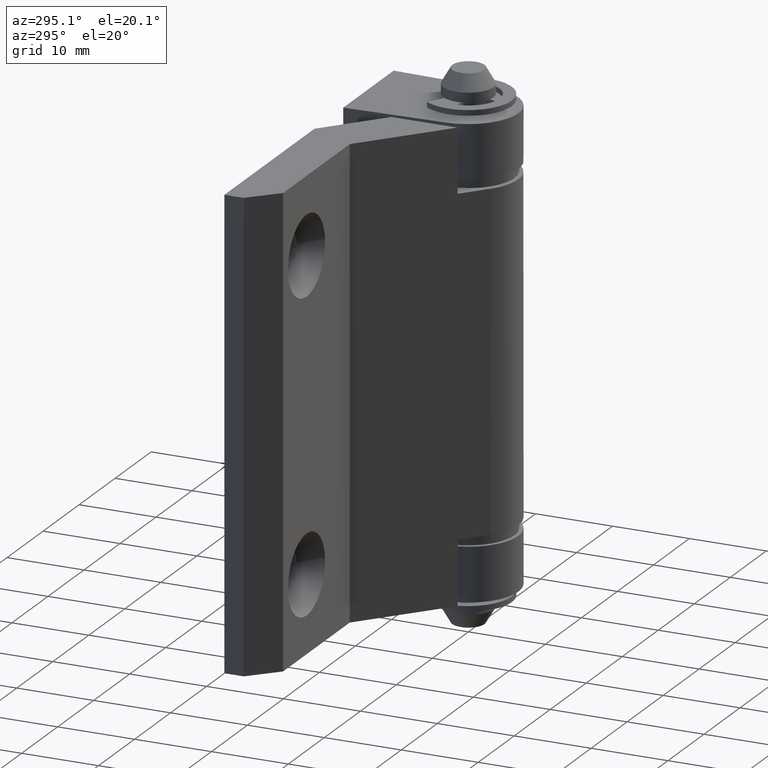
[diagram: clean part render]
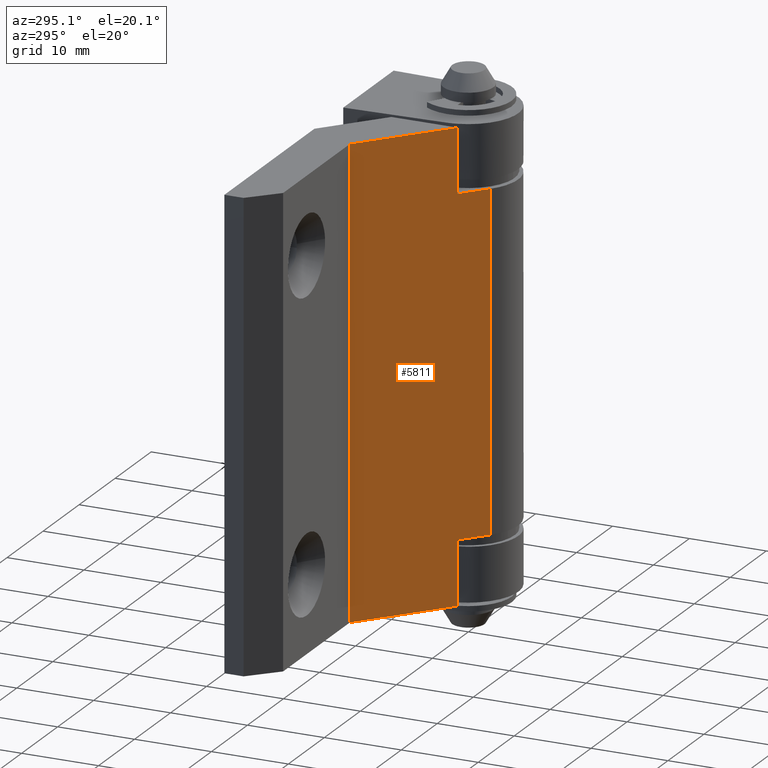
[diagram: same view with one face highlighted and labeled with its STEP entity id]
A machine part, auxiliary view. The second image highlights one B-rep face of the part: STEP entity #5811.
In plain terms, the highlighted face is a freeform B-spline surface patch.
Its self-contained STEP definition (entity closure, byte-faithful):
#5397=CARTESIAN_POINT('',(-7.500029223744510,-2.101085849482210,4.263256E-014));
#5398=VERTEX_POINT('',#5397);
#5413=CARTESIAN_POINT('',(-7.500029223721731,-2.101085849547970,8.300000394230409));
#5414=VERTEX_POINT('',#5413);
#5420=CARTESIAN_POINT('',(-7.500029223744510,-2.101085849482210,4.263256E-014));
#5421=CARTESIAN_POINT('',(-7.500029223721731,-2.101085849547970,8.300000394230409));
#5422=QUASI_UNIFORM_CURVE('',1,(#5420,#5421),.UNSPECIFIED.,.F.,.U.);
#5423=EDGE_CURVE('',#5398,#5414,#5422,.T.);
#5433=CARTESIAN_POINT('',(-4.257367604085540,-4.911727893075670,8.300000394230400));
#5434=VERTEX_POINT('',#5433);
#5454=CARTESIAN_POINT('',(-7.500029223721731,-2.101085849547970,8.300000394230409));
#5455=CARTESIAN_POINT('',(-4.257367604085540,-4.911727893075670,8.300000394230400));
#5456=QUASI_UNIFORM_CURVE('',1,(#5454,#5455),.UNSPECIFIED.,.F.,.U.);
#5457=EDGE_CURVE('',#5414,#5434,#5456,.T.);
#5479=CARTESIAN_POINT('',(-7.500029223721731,-2.101085849547970,51.700002455616698));
#5480=VERTEX_POINT('',#5479);
#5495=CARTESIAN_POINT('',(-7.500029223744510,-2.101085849488980,60.000002849847100));
#5496=VERTEX_POINT('',#5495);
#5502=CARTESIAN_POINT('',(-7.500029223721731,-2.101085849547970,51.700002455616698));
#5503=CARTESIAN_POINT('',(-7.500029223744510,-2.101085849488980,60.000002849847100));
#5504=QUASI_UNIFORM_CURVE('',1,(#5502,#5503),.UNSPECIFIED.,.F.,.U.);
#5505=EDGE_CURVE('',#5480,#5496,#5504,.T.);
#5523=CARTESIAN_POINT('',(-4.257367604085540,-4.911727893075670,51.700002455616698));
#5524=VERTEX_POINT('',#5523);
#5525=CARTESIAN_POINT('',(-4.257367604085540,-4.911727893075670,51.700002455616698));
#5526=CARTESIAN_POINT('',(-7.500029223721731,-2.101085849547970,51.700002455616698));
#5527=QUASI_UNIFORM_CURVE('',1,(#5525,#5526),.UNSPECIFIED.,.F.,.U.);
#5528=EDGE_CURVE('',#5524,#5480,#5527,.T.);
#5703=CARTESIAN_POINT('',(-18.000029722467900,7.000000332482120,0.0));
#5704=VERTEX_POINT('',#5703);
#5710=CARTESIAN_POINT('',(-18.000029722467900,7.000000332482120,60.000002849847100));
#5711=VERTEX_POINT('',#5710);
#5712=CARTESIAN_POINT('',(-18.000029722467900,7.000000332482120,60.000002849847100));
#5713=CARTESIAN_POINT('',(-18.000029722467900,7.000000332482120,0.0));
#5714=QUASI_UNIFORM_CURVE('',1,(#5712,#5713),.UNSPECIFIED.,.F.,.U.);
#5715=EDGE_CURVE('',#5711,#5704,#5714,.T.);
#5749=CARTESIAN_POINT('',(-7.500029223744510,-2.101085849488980,60.000002849847100));
#5750=CARTESIAN_POINT('',(-18.000029722467900,7.000000332482120,60.000002849847100));
#5751=QUASI_UNIFORM_CURVE('',1,(#5749,#5750),.UNSPECIFIED.,.F.,.U.);
#5752=EDGE_CURVE('',#5496,#5711,#5751,.T.);
#5764=CARTESIAN_POINT('',(-7.500029223744510,-2.101085849482210,4.263256E-014));
#5765=CARTESIAN_POINT('',(-18.000029722467900,7.000000332482120,0.0));
#5766=QUASI_UNIFORM_CURVE('',1,(#5764,#5765),.UNSPECIFIED.,.F.,.U.);
#5767=EDGE_CURVE('',#5398,#5704,#5766,.T.);
#5792=CARTESIAN_POINT('',(-18.686476313676561,7.594991693355396,-2.997000026058217));
#5793=CARTESIAN_POINT('',(-3.570921258614835,-5.506719040950653,-2.997000026058217));
#5794=CARTESIAN_POINT('',(-18.686476313676561,7.594991693355396,62.997004485230804));
#5795=CARTESIAN_POINT('',(-3.570921258614835,-5.506719040950653,62.997004485230804));
#5796=B_SPLINE_SURFACE_WITH_KNOTS('',1,1,((#5792,#5794),(#5793,#5795)),.UNSPECIFIED.,.F.,.F.,.U.,(2,2),(2,2),(0.0,20.003370435704891),(0.0,65.994004511289020),.UNSPECIFIED.);
#5797=ORIENTED_EDGE('',*,*,#5767,.F.);
#5798=ORIENTED_EDGE('',*,*,#5423,.T.);
#5799=ORIENTED_EDGE('',*,*,#5457,.T.);
#5800=CARTESIAN_POINT('',(-4.257367604085540,-4.911727893075670,51.700002455616698));
#5801=CARTESIAN_POINT('',(-4.257367604085540,-4.911727893075670,8.300000394230400));
#5802=QUASI_UNIFORM_CURVE('',1,(#5800,#5801),.UNSPECIFIED.,.F.,.U.);
#5803=EDGE_CURVE('',#5524,#5434,#5802,.T.);
#5804=ORIENTED_EDGE('',*,*,#5803,.F.);
#5805=ORIENTED_EDGE('',*,*,#5528,.T.);
#5806=ORIENTED_EDGE('',*,*,#5505,.T.);
#5807=ORIENTED_EDGE('',*,*,#5752,.T.);
#5808=ORIENTED_EDGE('',*,*,#5715,.T.);
#5809=EDGE_LOOP('',(#5797,#5798,#5799,#5804,#5805,#5806,#5807,#5808));
#5810=FACE_OUTER_BOUND('',#5809,.T.);
#5811=ADVANCED_FACE('',(#5810),#5796,.T.);